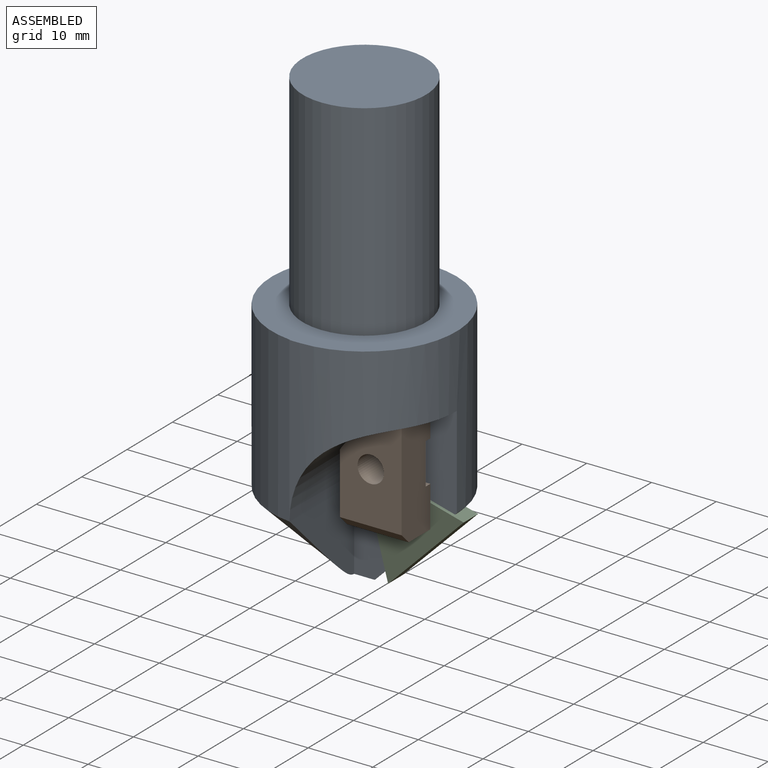
[diagram: assembled view]
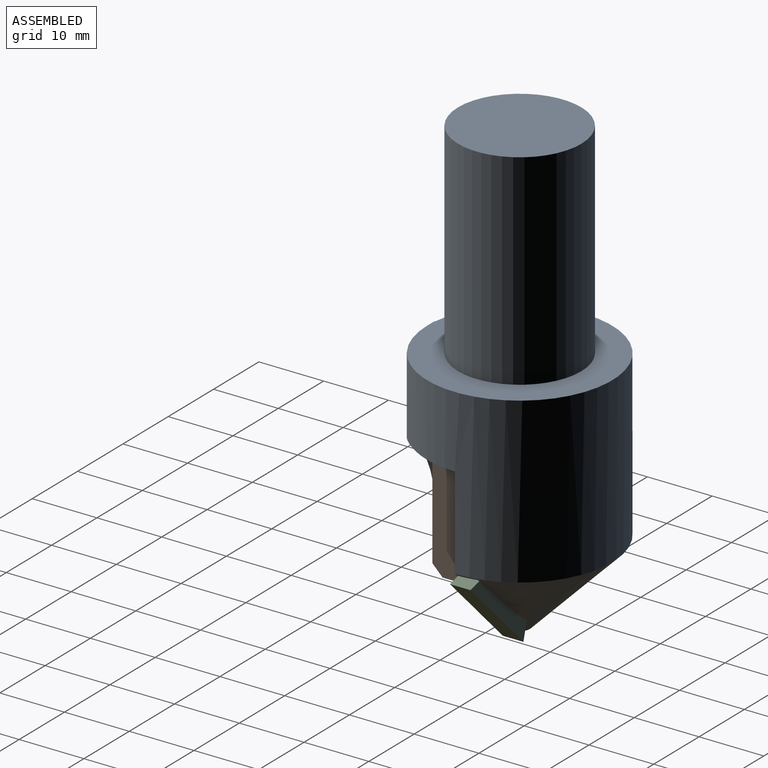
[diagram: assembled view, second angle]
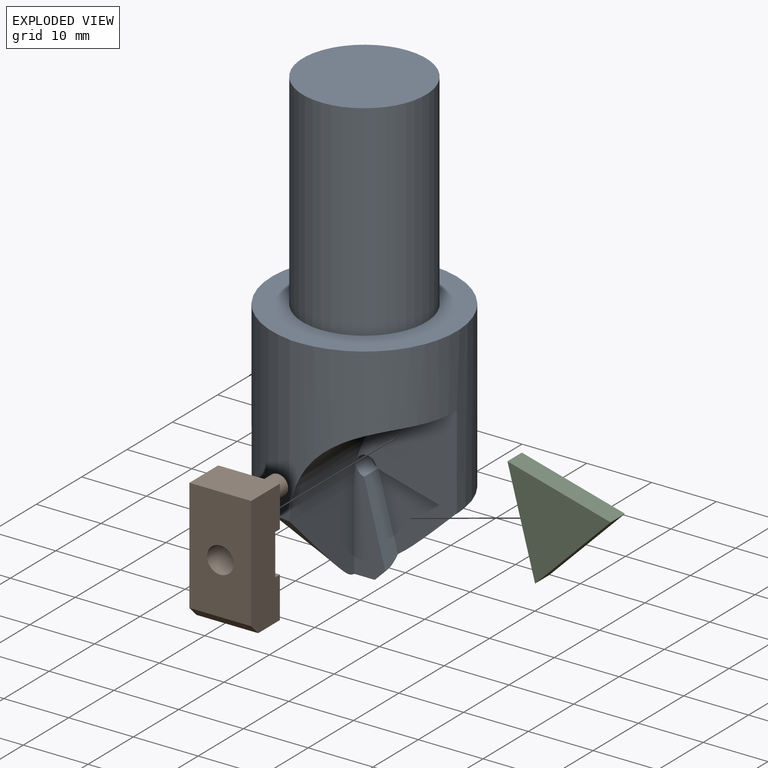
[diagram: exploded view]
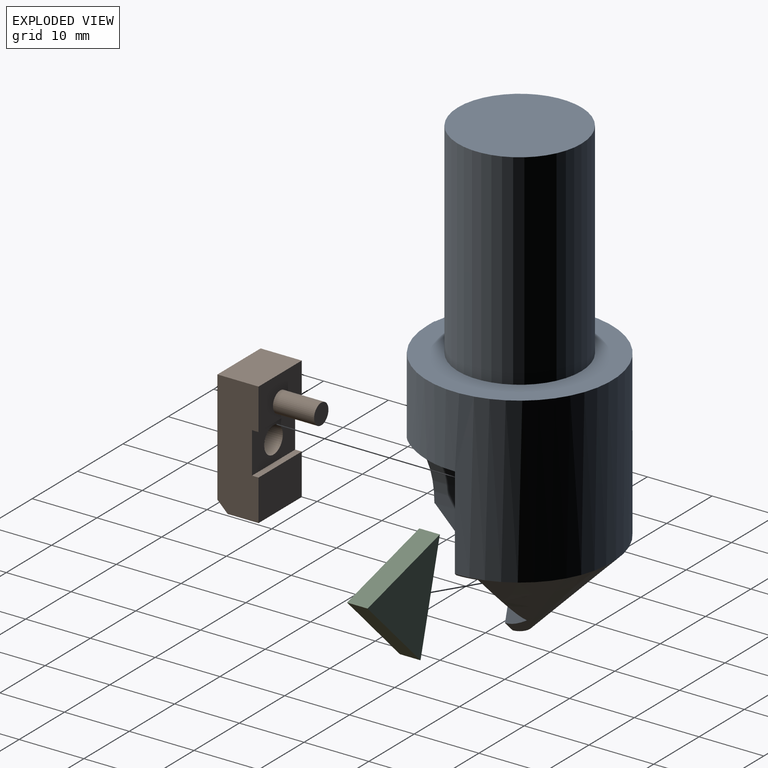
[diagram: exploded view, second angle]
ASSEMBLY  parts=3 mates=2
PART A: 16 faces, bbox 28.6x69.9x28.6 mm
  f0: plane 3.18x1.59mm, normal (0,-1,0), area 4mm2, adj f8,f11
  f1: plane 28.58x28.58mm, normal (0,1,0), area 356.3mm2, adj f2,f5,f9,f10
  f2: plane 25.4x1.59mm, normal (0,0,1), area 33.3mm2, adj f1,f3,f9,f10
  f3: cylinder r=14.29mm len=14.29mm, axis (0,0,1), area 291.3mm2, adj f2,f4,f7,f8,f9,f10
  f4: plane 6.55x1.59mm, normal (0,-1,0), area 7mm2, adj f3,f8,f9
  f5: cylinder r=9.53mm len=31.75mm, axis (0,-1,0), area 1900.2mm2, adj f1,f6
  f6: plane 19.05x19.05mm, normal (0,1,0), area 285mm2, adj f5
  f7: plane 14.2x12.7mm, normal (1,0,0), area 97.8mm2, adj f3,f8,f11
  f8: plane 26.99x15.88mm, normal (0,0,1), area 199.6mm2, adj f0,f3,f4,f7,f9,f11,f12,f13
  f9: cylinder r=14.29mm len=28.58mm, axis (0,-1,0), area 1948.5mm2, adj f1,f2,f3,f4,f8,f10,f11
  f10: plane 25.4x0.09mm, normal (-1,0,0), area 2.2mm2, adj f1,f2,f3,f9
  f11: cone r=1.59mm half-angle=45deg, axis (0,1,0), area 594.1mm2, adj f0,f7,f8,f9,f12,f13,f14
  f12: plane 12.18x3.3mm, normal (-0.26,-0.97,0), area 39.5mm2, adj f8,f11,f14,f15
  f13: plane 12.3x3.29mm, normal (0.97,0.26,0), area 39.2mm2, adj f8,f11,f14,f15
  f14: plane 15x14.34mm, normal (0,0,1), area 97.3mm2, adj f11,f12,f13,f15
  f15: cylinder r=1.59mm len=3.18mm, axis (0,0,1), area 22mm2, adj f8,f12,f13,f14
PART B: 14 faces, bbox 9.5x12.7x19.1 mm
  f0: plane 19.05x6.35mm, normal (1,0,0), area 113.3mm2, adj f2,f3,f4,f5,f6,f7,f8,f9
  f1: plane 19.05x6.35mm, normal (-1,0,0), area 113.3mm2, adj f2,f3,f4,f5,f6,f7,f8,f9
  f2: plane 9.53x6.35mm, normal (0,1,0), area 52.6mm2, adj f0,f1,f3,f8,f11
  f3: plane 9.53x6.35mm, normal (0,0,1), area 60.5mm2, adj f0,f1,f2,f5
  f4: plane 9.53x4.78mm, normal (0,0,-1), area 45.5mm2, adj f0,f1,f6,f13
  f5: plane 17.48x9.53mm, normal (0,-1,0), area 153.3mm2, adj f0,f1,f3,f10,f13
  f6: plane 9.53x6.35mm, normal (0,1,0), area 60.5mm2, adj f0,f1,f4,f9
  f7: plane 9.53x6.35mm, normal (0,1,0), area 47.3mm2, adj f0,f1,f8,f9,f10
  f8: plane 9.53x1.02mm, normal (0,0,-1), area 9.7mm2, adj f0,f1,f2,f7
  f9: plane 9.53x1.02mm, normal (0,0,1), area 9.7mm2, adj f0,f1,f6,f7
  f10: cylinder r=2.04mm len=5.33mm, axis (0,1,0), area 68.5mm2, adj f5,f7
  f11: cylinder r=1.59mm len=6.35mm, axis (0,-1,0), area 63.3mm2, adj f2,f12
  f12: plane 3.18x3.18mm, normal (0,1,0), area 7.9mm2, adj f11
  f13: plane 9.53x1.58mm, normal (0,-0.71,-0.71), area 21.2mm2, adj f0,f1,f4,f5
PART C: 5 faces, bbox 14.4x3.2x16.5 mm
  f0: plane 14.36x8.12mm, normal (-0.49,0,0.87), area 52.4mm2, adj f1,f2,f3,f4
  f1: plane 14.21x8.38mm, normal (-0.51,0,-0.86), area 52.4mm2, adj f0,f2,f3,f4
  f2: plane 16.5x3.18mm, normal (1,0,-0.01), area 52.4mm2, adj f0,f1,f3,f4
  f3: plane 16.5x14.36mm, normal (0,-1,0), area 117.9mm2, adj f0,f1,f2
  f4: plane 16.5x14.36mm, normal (0,1,0), area 117.9mm2, adj f0,f1,f2
PLACE A rot(axis=(1,0,0),90deg) t=(-2.04,-6.12,-2.72)mm
PLACE B t=(3.39,-6.12,-21.92)mm
PLACE C rot(axis=(0.13,0,-0.99),180deg) t=(4.11,-6.15,-31.59)mm
MATE fastened C.f2 <-> A.f13  axis (-0.97,0,-0.26) through (-0.49,-4.56,-32.83)mm
MATE planar A.f8 <-> B.f6  axis (0,-1,0) through (4.39,-6.12,-24.2)mm
